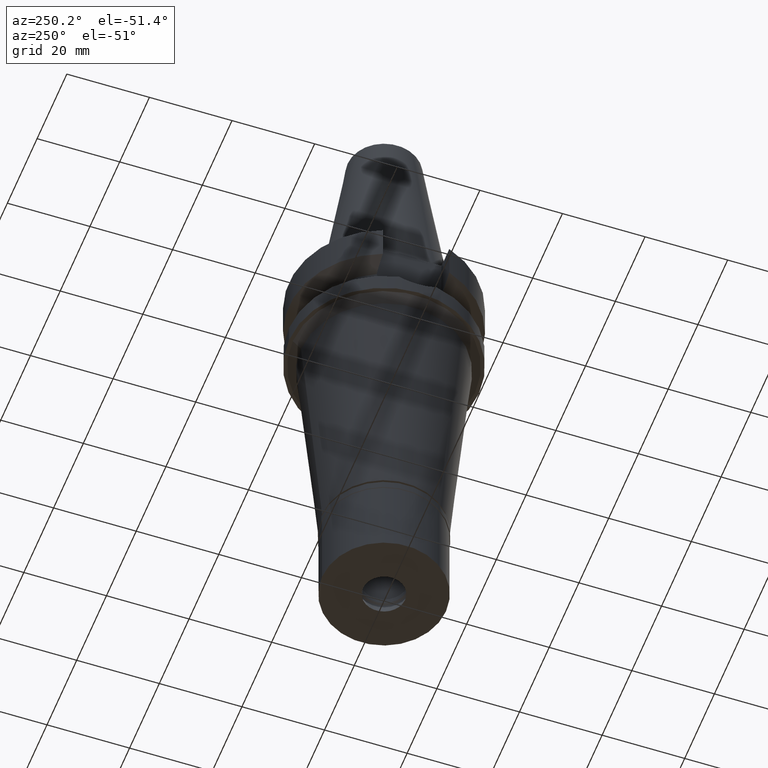
[diagram: clean part render]
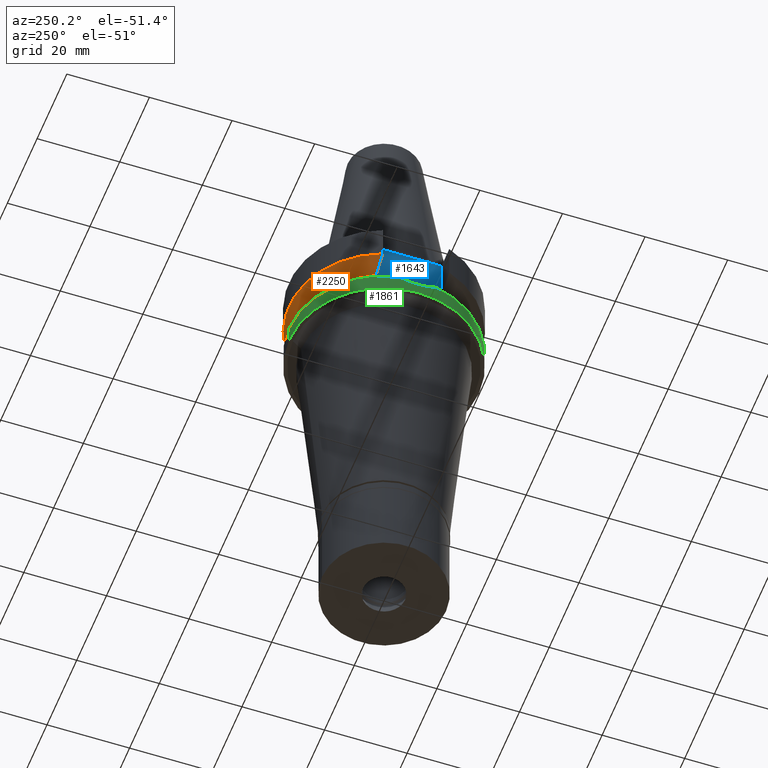
[diagram: same view with three faces highlighted in distinct colors, each labeled with its STEP entity id]
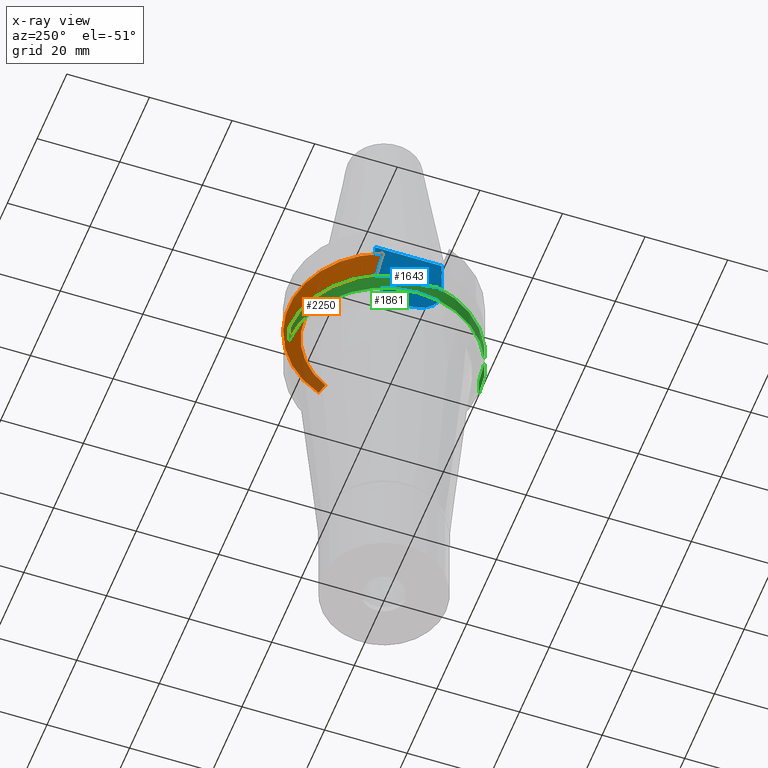
[diagram: x-ray of the same camera — body ghosted, the three highlighted faces saturated]
A machine part, auxiliary view with three faces highlighted in distinct colors.
The next image is the same camera in x-ray (body ghosted, the three faces saturated) — at least one of them is partly hidden behind the body in this view.
Their STEP definitions:

[orange] entity #2250 — the highlighted conical surface has half-angle 60 deg.
#71 = ORIENTED_EDGE ( 'NONE', *, *, #1057, .F. ) ;
#112 = ORIENTED_EDGE ( 'NONE', *, *, #2804, .F. ) ;
#183 = EDGE_CURVE ( 'NONE', #696, #1474, #190, .T. ) ;
#190 = B_SPLINE_CURVE_WITH_KNOTS ( 'NONE', 3,
 ( #207, #2102, #1903, #1389 ),
 .UNSPECIFIED., .F., .F.,
 ( 4, 4 ),
 ( 0.0000000000000000000, 1.000000000000000000 ),
 .UNSPECIFIED. ) ;
#207 = CARTESIAN_POINT ( 'NONE',  ( -18.96736186674000280, 8.050001277723000115, -10.94999977542999936 ) ) ;
#284 = B_SPLINE_CURVE_WITH_KNOTS ( 'NONE', 3,
 ( #2275, #1811, #2750, #3021 ),
 .UNSPECIFIED., .F., .F.,
 ( 4, 4 ),
 ( 0.0000000000000000000, 1.000000000000000000 ),
 .UNSPECIFIED. ) ;
#336 = CARTESIAN_POINT ( 'NONE',  ( 21.54524325238000060, 8.049999577379001181, -9.567211146543000311 ) ) ;
#386 = B_SPLINE_CURVE_WITH_KNOTS ( 'NONE', 3,
 ( #2537, #2301, #2551, #864 ),
 .UNSPECIFIED., .F., .F.,
 ( 4, 4 ),
 ( 0.0000000000000000000, 1.000000000000000000 ),
 .UNSPECIFIED. ) ;
#690 = DIRECTION ( 'NONE',  ( 0.0000000000000000000, 1.000000000000000000, 0.0000000000000000000 ) ) ;
#696 = VERTEX_POINT ( 'NONE', #2345 ) ;
#731 = CARTESIAN_POINT ( 'NONE',  ( -18.96736186674000280, 8.050001277723000115, -10.94999977542999936 ) ) ;
#790 = CARTESIAN_POINT ( 'NONE',  ( 18.96738966530000070, 8.049994318182998043, -10.95000099923000114 ) ) ;
#835 = B_SPLINE_CURVE_WITH_KNOTS ( 'NONE', 3,
 ( #731, #2587, #1691, #1920 ),
 .UNSPECIFIED., .F., .F.,
 ( 4, 4 ),
 ( 0.0000000000000000000, 1.000000000000000000 ),
 .UNSPECIFIED. ) ;
#839 = VERTEX_POINT ( 'NONE', #850 ) ;
#845 = AXIS2_PLACEMENT_3D ( 'NONE', #920, #1418, #690 ) ;
#850 = CARTESIAN_POINT ( 'NONE',  ( -17.23531135310999929, 7.996501749182001184, -11.87660739352000050 ) ) ;
#864 = CARTESIAN_POINT ( 'NONE',  ( 18.96738966530000070, 8.049994318182998043, -10.95000099923000114 ) ) ;
#913 = DIRECTION ( 'NONE',  ( -0.9071218755693948310, 0.4208680349746975469, 0.0000000000000000000 ) ) ;
#920 = CARTESIAN_POINT ( 'NONE',  ( 0.0000000000000000000, 0.0000000000000000000, -9.567208369710998639 ) ) ;
#951 = ORIENTED_EDGE ( 'NONE', *, *, #1116, .F. ) ;
#1021 = VERTEX_POINT ( 'NONE', #1603 ) ;
#1048 = CIRCLE ( 'NONE', #1455, 19.00000000000000000 ) ;
#1057 = EDGE_CURVE ( 'NONE', #1021, #1850, #284, .T. ) ;
#1116 = EDGE_CURVE ( 'NONE', #839, #1021, #1048, .T. ) ;
#1199 = CIRCLE ( 'NONE', #845, 23.00000000000000000 ) ;
#1204 = DIRECTION ( 'NONE',  ( 0.0000000000000000000, 1.000000000000000000, 0.0000000000000000000 ) ) ;
#1338 = ORIENTED_EDGE ( 'NONE', *, *, #2160, .F. ) ;
#1389 = CARTESIAN_POINT ( 'NONE',  ( -21.54524231189000005, 8.050002094537999753, -9.567194606710000215 ) ) ;
#1405 = FACE_OUTER_BOUND ( 'NONE', #1563, .T. ) ;
#1418 = DIRECTION ( 'NONE',  ( 0.0000000000000000000, 0.0000000000000000000, 1.000000000000000000 ) ) ;
#1455 = AXIS2_PLACEMENT_3D ( 'NONE', #1785, #2057, #913 ) ;
#1474 = VERTEX_POINT ( 'NONE', #2198 ) ;
#1563 = EDGE_LOOP ( 'NONE', ( #1338, #2012, #71, #951, #112, #2134 ) ) ;
#1603 = CARTESIAN_POINT ( 'NONE',  ( 17.23531622902000038, 7.996491146276001771, -11.87660607782000000 ) ) ;
#1691 = CARTESIAN_POINT ( 'NONE',  ( -17.72682660245077813, 8.027186146720495685, -11.61172867191410418 ) ) ;
#1785 = CARTESIAN_POINT ( 'NONE',  ( 0.0000000000000000000, 0.0000000000000000000, -11.87660944646999894 ) ) ;
#1811 = CARTESIAN_POINT ( 'NONE',  ( 17.72598986751017236, 8.027133616107310132, -11.61218197945228070 ) ) ;
#1850 = VERTEX_POINT ( 'NONE', #790 ) ;
#1866 = CARTESIAN_POINT ( 'NONE',  ( 0.0000000000000000000, 0.0000000000000000000, -10.72190890808999875 ) ) ;
#1903 = CARTESIAN_POINT ( 'NONE',  ( -20.64102060459518029, 8.050004185766381326, -10.05624058887161532 ) ) ;
#1920 = CARTESIAN_POINT ( 'NONE',  ( -17.23531135310999929, 7.996501749182001184, -11.87660739352000050 ) ) ;
#2012 = ORIENTED_EDGE ( 'NONE', *, *, #2683, .T. ) ;
#2057 = DIRECTION ( 'NONE',  ( 0.0000000000000000000, 0.0000000000000000000, -1.000000000000000000 ) ) ;
#2102 = CARTESIAN_POINT ( 'NONE',  ( -19.78176599729541962, 8.050001299788625886, -10.51717224217188473 ) ) ;
#2134 = ORIENTED_EDGE ( 'NONE', *, *, #183, .T. ) ;
#2160 = EDGE_CURVE ( 'NONE', #3007, #1474, #1199, .T. ) ;
#2198 = CARTESIAN_POINT ( 'NONE',  ( -21.54524231189000005, 8.050002094537999753, -9.567194606710000215 ) ) ;
#2250 = ADVANCED_FACE ( 'NONE', ( #1405 ), #2813, .T. ) ;
#2275 = CARTESIAN_POINT ( 'NONE',  ( 17.23531622902000038, 7.996491146276001771, -11.87660607782000000 ) ) ;
#2301 = CARTESIAN_POINT ( 'NONE',  ( 20.64098922513857204, 8.049999155450739963, -10.05625859774404063 ) ) ;
#2318 = AXIS2_PLACEMENT_3D ( 'NONE', #1866, #2808, #1204 ) ;
#2345 = CARTESIAN_POINT ( 'NONE',  ( -18.96736186674000280, 8.050001277723000115, -10.94999977542999936 ) ) ;
#2537 = CARTESIAN_POINT ( 'NONE',  ( 21.54524325238000060, 8.049999577379001181, -9.567211146543000311 ) ) ;
#2551 = CARTESIAN_POINT ( 'NONE',  ( 19.78174442298433533, 8.049991903556987793, -10.51718567366341262 ) ) ;
#2587 = CARTESIAN_POINT ( 'NONE',  ( -18.30417677366077811, 8.050000009832531944, -11.30245974016199106 ) ) ;
#2683 = EDGE_CURVE ( 'NONE', #3007, #1850, #386, .T. ) ;
#2750 = CARTESIAN_POINT ( 'NONE',  ( 18.30334767960350817, 8.049999956193227391, -11.30291651801537789 ) ) ;
#2804 = EDGE_CURVE ( 'NONE', #696, #839, #835, .T. ) ;
#2808 = DIRECTION ( 'NONE',  ( 0.0000000000000000000, 0.0000000000000000000, 1.000000000000000000 ) ) ;
#2813 = CONICAL_SURFACE ( 'NONE', #2318, 21.00000000000000000, 1.047197551196400456 ) ;
#3007 = VERTEX_POINT ( 'NONE', #336 ) ;
#3021 = CARTESIAN_POINT ( 'NONE',  ( 18.96738966530000070, 8.049994318182998043, -10.95000099923000114 ) ) ;

[blue] entity #1643 — the highlighted planar face has unit normal (-1, 0, 0).
#4 = CARTESIAN_POINT ( 'NONE',  ( -16.29999999999999716, -8.050000000000000711, -1.000000000000000000 ) ) ;
#140 = ORIENTED_EDGE ( 'NONE', *, *, #585, .T. ) ;
#149 = CARTESIAN_POINT ( 'NONE',  ( -16.29999999999999716, 0.0000000000000000000, -10.94999999999999929 ) ) ;
#178 = CARTESIAN_POINT ( 'NONE',  ( -16.29999999999999716, -8.050000000000000711, -1.000000000000000000 ) ) ;
#193 = FACE_OUTER_BOUND ( 'NONE', #2293, .T. ) ;
#486 = ORIENTED_EDGE ( 'NONE', *, *, #2356, .F. ) ;
#514 = AXIS2_PLACEMENT_3D ( 'NONE', #149, #2736, #1843 ) ;
#522 = ORIENTED_EDGE ( 'NONE', *, *, #867, .F. ) ;
#585 = EDGE_CURVE ( 'NONE', #2859, #652, #1373, .T. ) ;
#649 = VECTOR ( 'NONE', #2041, 1000.000000000000000 ) ;
#652 = VERTEX_POINT ( 'NONE', #2311 ) ;
#659 = VERTEX_POINT ( 'NONE', #1417 ) ;
#738 = DIRECTION ( 'NONE',  ( 0.0000000000000000000, 1.000000000000000000, 0.0000000000000000000 ) ) ;
#753 = CARTESIAN_POINT ( 'NONE',  ( -16.29999999999999716, 8.050000000000000711, -10.94999999999999929 ) ) ;
#757 = ORIENTED_EDGE ( 'NONE', *, *, #1032, .F. ) ;
#836 = LINE ( 'NONE', #753, #856 ) ;
#856 = VECTOR ( 'NONE', #2686, 1000.000000000000000 ) ;
#867 = EDGE_CURVE ( 'NONE', #659, #652, #836, .T. ) ;
#1032 = EDGE_CURVE ( 'NONE', #2234, #659, #1451, .T. ) ;
#1076 = LINE ( 'NONE', #178, #649 ) ;
#1373 = LINE ( 'NONE', #2083, #2022 ) ;
#1404 = AXIS2_PLACEMENT_3D ( 'NONE', #1600, #1809, #2746 ) ;
#1417 = CARTESIAN_POINT ( 'NONE',  ( -16.29999999999999716, 8.050000000000000711, -10.94999999999999929 ) ) ;
#1451 = CIRCLE ( 'NONE', #514, 8.050000000000000711 ) ;
#1600 = CARTESIAN_POINT ( 'NONE',  ( -16.29999999999999716, 0.0000000000000000000, 0.0000000000000000000 ) ) ;
#1643 = ADVANCED_FACE ( 'NONE', ( #193 ), #2734, .T. ) ;
#1809 = DIRECTION ( 'NONE',  ( -1.000000000000000000, 0.0000000000000000000, 0.0000000000000000000 ) ) ;
#1843 = DIRECTION ( 'NONE',  ( 0.0000000000000000000, -1.000000000000000000, 0.0000000000000000000 ) ) ;
#2022 = VECTOR ( 'NONE', #738, 1000.000000000000000 ) ;
#2041 = DIRECTION ( 'NONE',  ( 0.0000000000000000000, 0.0000000000000000000, -1.000000000000000000 ) ) ;
#2083 = CARTESIAN_POINT ( 'NONE',  ( -16.29999999999999716, -8.050000000000000711, -1.000000000000000000 ) ) ;
#2234 = VERTEX_POINT ( 'NONE', #2361 ) ;
#2293 = EDGE_LOOP ( 'NONE', ( #522, #757, #486, #140 ) ) ;
#2311 = CARTESIAN_POINT ( 'NONE',  ( -16.29999999999999716, 8.050000000000000711, -1.000000000000000000 ) ) ;
#2356 = EDGE_CURVE ( 'NONE', #2859, #2234, #1076, .T. ) ;
#2361 = CARTESIAN_POINT ( 'NONE',  ( -16.29999999999999716, -8.050000000000000711, -10.94999999999999929 ) ) ;
#2686 = DIRECTION ( 'NONE',  ( 0.0000000000000000000, 0.0000000000000000000, 1.000000000000000000 ) ) ;
#2734 = PLANE ( 'NONE',  #1404 ) ;
#2736 = DIRECTION ( 'NONE',  ( 1.000000000000000000, 0.0000000000000000000, 0.0000000000000000000 ) ) ;
#2746 = DIRECTION ( 'NONE',  ( 0.0000000000000000000, 0.0000000000000000000, 1.000000000000000000 ) ) ;
#2859 = VERTEX_POINT ( 'NONE', #4 ) ;

[green] entity #1861 — the highlighted cylindrical surface (partial cylindrical patch) has radius 23 mm, axis along (0, 0, -1).
#142 = CARTESIAN_POINT ( 'NONE',  ( -22.86299764017492109, 2.513998440286344227, -18.59993219616548998 ) ) ;
#155 = VECTOR ( 'NONE', #1296, 1000.000000000000000 ) ;
#156 = CARTESIAN_POINT ( 'NONE',  ( -22.68649344665330148, 3.802561668331853273, -18.05674994119921450 ) ) ;
#175 = CARTESIAN_POINT ( 'NONE',  ( -22.76906518328317475, -3.256220981414457150, -18.31473950850416443 ) ) ;
#195 = LINE ( 'NONE', #632, #1263 ) ;
#204 = EDGE_CURVE ( 'NONE', #678, #814, #2032, .T. ) ;
#212 = AXIS2_PLACEMENT_3D ( 'NONE', #937, #712, #477 ) ;
#253 = CARTESIAN_POINT ( 'NONE',  ( 0.0000000000000000000, 23.00000000000000000, -17.63279163029000074 ) ) ;
#286 = EDGE_CURVE ( 'NONE', #855, #297, #2765, .T. ) ;
#297 = VERTEX_POINT ( 'NONE', #579 ) ;
#309 = DIRECTION ( 'NONE',  ( 0.0000000000000000000, -1.000000000000000000, 0.0000000000000000000 ) ) ;
#325 = DIRECTION ( 'NONE',  ( 0.0000000000000000000, 0.0000000000000000000, -1.000000000000000000 ) ) ;
#327 = CARTESIAN_POINT ( 'NONE',  ( 0.0000000000000000000, 23.00000000000000000, -17.63279163029000074 ) ) ;
#366 = CARTESIAN_POINT ( 'NONE',  ( -22.79395158218660100, 3.073159909354378438, -18.39099020755608294 ) ) ;
#378 = CARTESIAN_POINT ( 'NONE',  ( -22.83068946769613916, 2.796555836996280409, -18.50323463583304573 ) ) ;
#427 = ORIENTED_EDGE ( 'NONE', *, *, #286, .T. ) ;
#456 = CARTESIAN_POINT ( 'NONE',  ( 0.0000000000000000000, 23.00000000000000000, -22.00000000000000000 ) ) ;
#477 = DIRECTION ( 'NONE',  ( 0.0000000000000000000, 1.000000000000000000, 0.0000000000000000000 ) ) ;
#579 = CARTESIAN_POINT ( 'NONE',  ( -22.55786346208000026, -4.488072640470000430, -17.63279163029000074 ) ) ;
#611 = CARTESIAN_POINT ( 'NONE',  ( -22.55786346208000026, -4.488072640470000430, -17.63279163029000074 ) ) ;
#626 = CARTESIAN_POINT ( 'NONE',  ( -22.94783186597323521, 1.560100664601769438, -18.85010169162683624 ) ) ;
#632 = CARTESIAN_POINT ( 'NONE',  ( 0.0000000000000000000, -23.00000000000000000, -17.63279163029000074 ) ) ;
#641 = AXIS2_PLACEMENT_3D ( 'NONE', #1664, #1456, #2602 ) ;
#658 = CARTESIAN_POINT ( 'NONE',  ( -22.86328788541447565, -2.511235512423017457, -18.60078649682495566 ) ) ;
#678 = VERTEX_POINT ( 'NONE', #456 ) ;
#693 = AXIS2_PLACEMENT_3D ( 'NONE', #2927, #1989, #309 ) ;
#712 = DIRECTION ( 'NONE',  ( 0.0000000000000000000, 0.0000000000000000000, 1.000000000000000000 ) ) ;
#750 = CIRCLE ( 'NONE', #641, 23.00000000000001066 ) ;
#814 = VERTEX_POINT ( 'NONE', #2464 ) ;
#855 = VERTEX_POINT ( 'NONE', #1538 ) ;
#886 = CARTESIAN_POINT ( 'NONE',  ( -22.98981224927119982, 0.7866763846421457318, -18.97140372421538146 ) ) ;
#903 = CARTESIAN_POINT ( 'NONE',  ( -22.55786346208000026, 4.488072640470000430, -17.63279163029000074 ) ) ;
#937 = CARTESIAN_POINT ( 'NONE',  ( 0.0000000000000000000, 0.0000000000000000000, -22.00000000000000000 ) ) ;
#999 = EDGE_CURVE ( 'NONE', #855, #814, #195, .T. ) ;
#1034 = FACE_OUTER_BOUND ( 'NONE', #1324, .T. ) ;
#1056 = CYLINDRICAL_SURFACE ( 'NONE', #693, 23.00000000000000000 ) ;
#1138 = CARTESIAN_POINT ( 'NONE',  ( -23.00002281186930375, -0.7888770314088883184, -19.00007136417956133 ) ) ;
#1152 = ORIENTED_EDGE ( 'NONE', *, *, #1330, .T. ) ;
#1263 = VECTOR ( 'NONE', #1572, 1000.000000000000000 ) ;
#1296 = DIRECTION ( 'NONE',  ( 0.0000000000000000000, -2.359143140496999862E-14, -1.000000000000000000 ) ) ;
#1324 = EDGE_LOOP ( 'NONE', ( #1152, #1561, #2192, #2101, #427, #1574 ) ) ;
#1329 = CARTESIAN_POINT ( 'NONE',  ( -22.59123113221041379, -4.320360705495513542, -17.74542470168760033 ) ) ;
#1330 = EDGE_CURVE ( 'NONE', #1463, #2255, #750, .T. ) ;
#1340 = CARTESIAN_POINT ( 'NONE',  ( -22.95937176840344662, -1.564300381434483134, -18.88601547087366583 ) ) ;
#1456 = DIRECTION ( 'NONE',  ( 0.0000000000000000000, 0.0000000000000000000, -1.000000000000000000 ) ) ;
#1463 = VERTEX_POINT ( 'NONE', #1721 ) ;
#1505 = CARTESIAN_POINT ( 'NONE',  ( 0.0000000000000000000, 0.0000000000000000000, -17.63279163029000074 ) ) ;
#1538 = CARTESIAN_POINT ( 'NONE',  ( 0.0000000000000000000, -23.00000000000000000, -17.63279163029000074 ) ) ;
#1561 = ORIENTED_EDGE ( 'NONE', *, *, #2928, .T. ) ;
#1565 = CARTESIAN_POINT ( 'NONE',  ( -22.68451933451913760, -3.797473649046404276, -18.04874071985443962 ) ) ;
#1572 = DIRECTION ( 'NONE',  ( 0.0000000000000000000, 2.359143140496999862E-14, -1.000000000000000000 ) ) ;
#1574 = ORIENTED_EDGE ( 'NONE', *, *, #2127, .T. ) ;
#1664 = CARTESIAN_POINT ( 'NONE',  ( 0.0000000000000000000, 0.0000000000000000000, -17.63279163029000074 ) ) ;
#1721 = CARTESIAN_POINT ( 'NONE',  ( -22.55786346208000026, 4.488072640470000430, -17.63279163029000074 ) ) ;
#1748 = DIRECTION ( 'NONE',  ( 0.0000000000000000000, -1.000000000000000000, 0.0000000000000000000 ) ) ;
#1776 = CARTESIAN_POINT ( 'NONE',  ( -22.99998857965328014, 0.3954357281745803920, -18.99996427672772015 ) ) ;
#1806 = CARTESIAN_POINT ( 'NONE',  ( -22.63949001741873701, -4.063148910854287976, -17.90449339563372533 ) ) ;
#1817 = CARTESIAN_POINT ( 'NONE',  ( -22.96012911260475065, 1.367498767912776803, -18.88577561040428776 ) ) ;
#1861 = ADVANCED_FACE ( 'NONE', ( #1034 ), #1056, .T. ) ;
#1989 = DIRECTION ( 'NONE',  ( 0.0000000000000000000, 0.0000000000000000000, -1.000000000000000000 ) ) ;
#2032 = CIRCLE ( 'NONE', #212, 23.00000000000000000 ) ;
#2051 = CARTESIAN_POINT ( 'NONE',  ( -22.79454503233587559, -3.073076066341776436, -18.39302868086632259 ) ) ;
#2064 = CARTESIAN_POINT ( 'NONE',  ( -22.75550204053671166, 3.345990980604419907, -18.27236121651538525 ) ) ;
#2101 = ORIENTED_EDGE ( 'NONE', *, *, #999, .F. ) ;
#2127 = EDGE_CURVE ( 'NONE', #297, #1463, #2730, .T. ) ;
#2192 = ORIENTED_EDGE ( 'NONE', *, *, #204, .T. ) ;
#2238 = LINE ( 'NONE', #327, #155 ) ;
#2255 = VERTEX_POINT ( 'NONE', #253 ) ;
#2261 = CARTESIAN_POINT ( 'NONE',  ( -22.76851976887504492, 3.256232192869069397, -18.31270572916153938 ) ) ;
#2297 = CARTESIAN_POINT ( 'NONE',  ( -22.91857224593736930, 1.943179775629895856, -18.76449142572439399 ) ) ;
#2464 = CARTESIAN_POINT ( 'NONE',  ( 0.0000000000000000000, -23.00000000000000000, -22.00000000000000000 ) ) ;
#2513 = CARTESIAN_POINT ( 'NONE',  ( -22.71375876031132535, -3.618478482975230115, -18.14161196495149042 ) ) ;
#2602 = DIRECTION ( 'NONE',  ( -0.9807766722643714852, 0.1951335930638943839, 0.0000000000000000000 ) ) ;
#2730 = B_SPLINE_CURVE_WITH_KNOTS ( 'NONE', 3,
 ( #611, #1329, #1806, #1565, #2513, #2732, #175, #2051, #2999, #658, #1340, #1138, #1776, #886, #1817, #626, #2297, #2758, #142, #378, #366, #2261, #2064, #156, #3014, #903 ),
 .UNSPECIFIED., .F., .F.,
 ( 4, 1, 2, 2, 2, 2, 2, 2, 2, 2, 1, 2, 2, 4 ),
 ( 0.0000000000000000000, 0.06249999999999956979, 0.09374999999999936162, 0.1249999999999991396, 0.1874999999999990286, 0.2499999999999989453, 0.4999999999999987788, 0.6249999999999985567, 0.6874999999999985567, 0.7499999999999985567, 0.8124999999999986677, 0.8437499999999988898, 0.8749999999999991118, 1.000000000000000000 ),
 .UNSPECIFIED. ) ;
#2732 = CARTESIAN_POINT ( 'NONE',  ( -22.72816250855019860, -3.526890285369466138, -18.18694437595801361 ) ) ;
#2758 = CARTESIAN_POINT ( 'NONE',  ( -22.90177418993782510, 2.132038509385763891, -18.71504283843581362 ) ) ;
#2765 = CIRCLE ( 'NONE', #2816, 23.00000000000000000 ) ;
#2816 = AXIS2_PLACEMENT_3D ( 'NONE', #1505, #325, #1748 ) ;
#2927 = CARTESIAN_POINT ( 'NONE',  ( 0.0000000000000000000, 0.0000000000000000000, 0.0000000000000000000 ) ) ;
#2928 = EDGE_CURVE ( 'NONE', #2255, #678, #2238, .T. ) ;
#2999 = CARTESIAN_POINT ( 'NONE',  ( -22.84156870167275599, -2.701447572594112945, -18.53579186025342551 ) ) ;
#3014 = CARTESIAN_POINT ( 'NONE',  ( -22.62456218305655753, 4.152832825653535842, -17.85793416414517054 ) ) ;